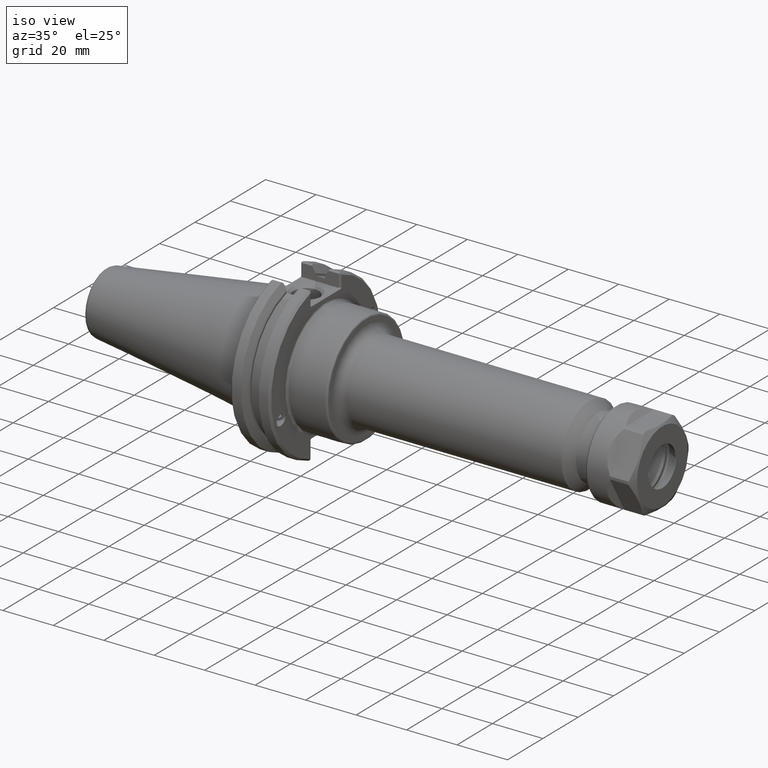
[diagram: clean part render]
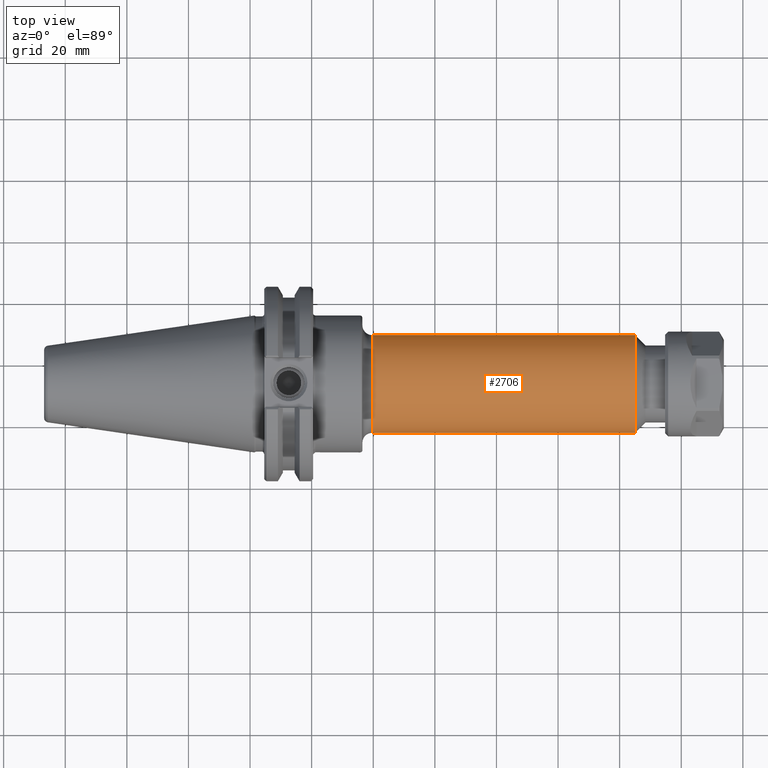
[diagram: tour spotlight — one face highlighted and labeled with its STEP entity id]
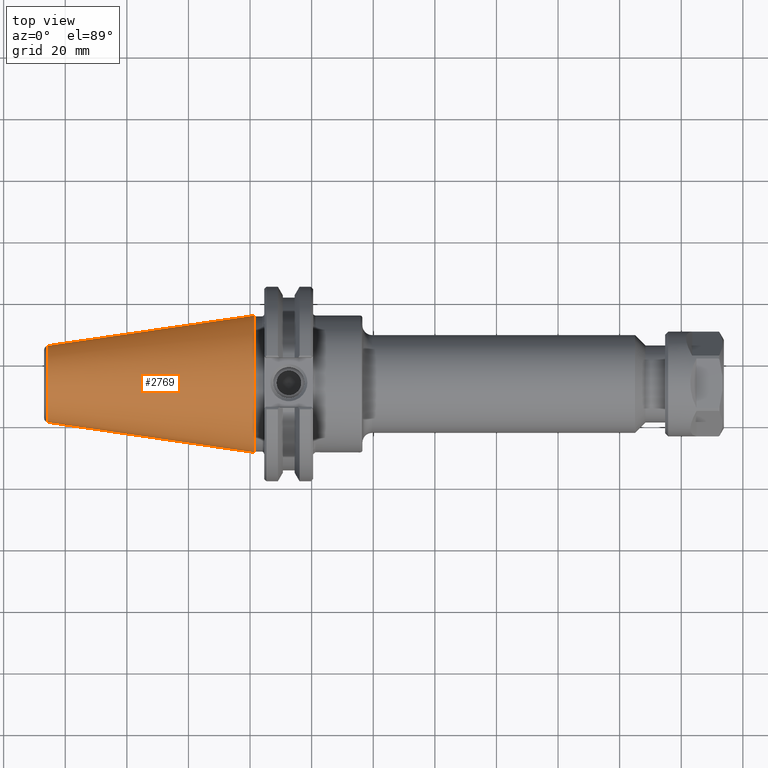
[diagram: tour spotlight — one face highlighted and labeled with its STEP entity id]
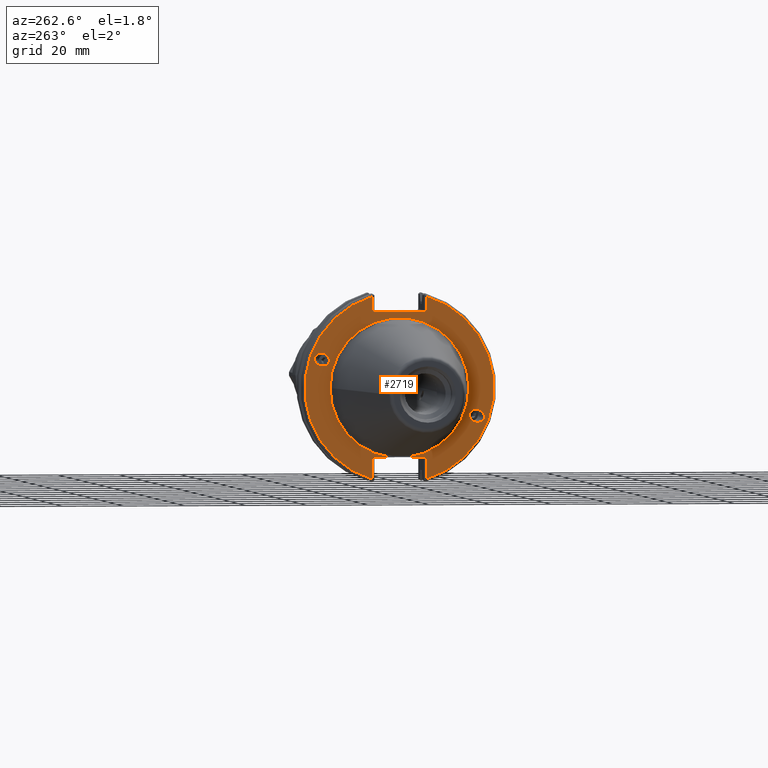
[diagram: tour spotlight — one face highlighted and labeled with its STEP entity id]
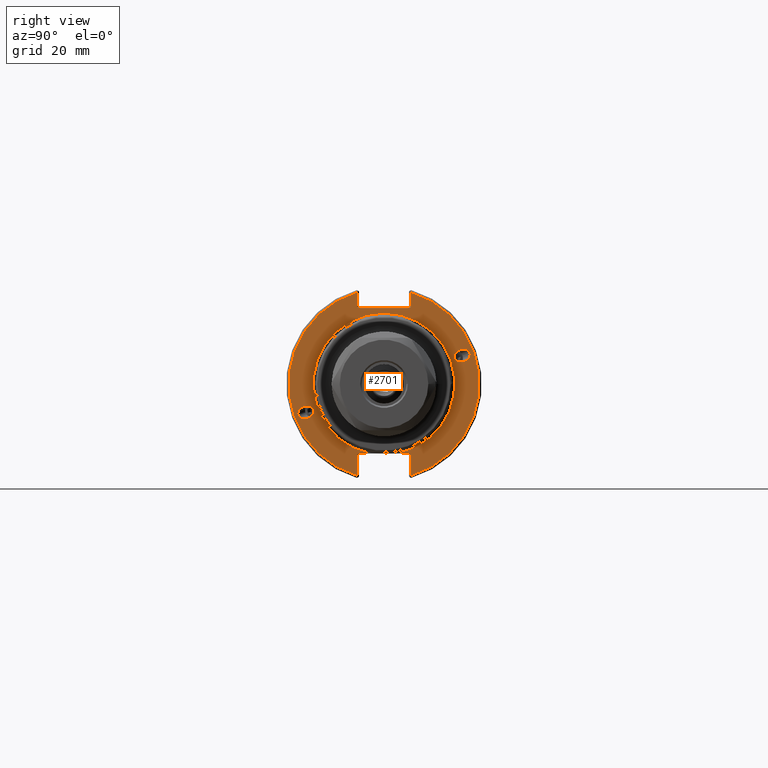
[diagram: tour spotlight — one face highlighted and labeled with its STEP entity id]
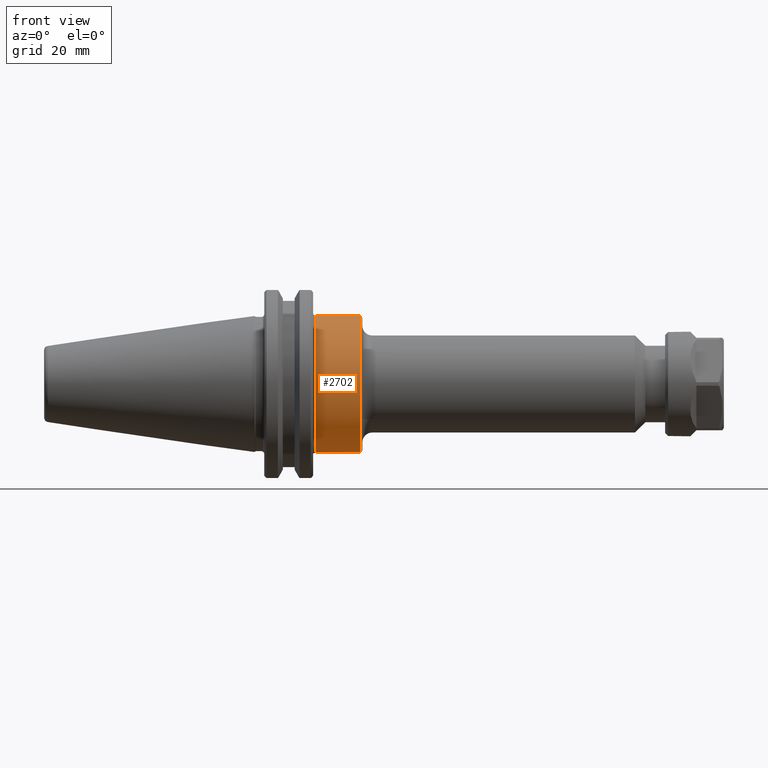
[diagram: tour spotlight — one face highlighted and labeled with its STEP entity id]
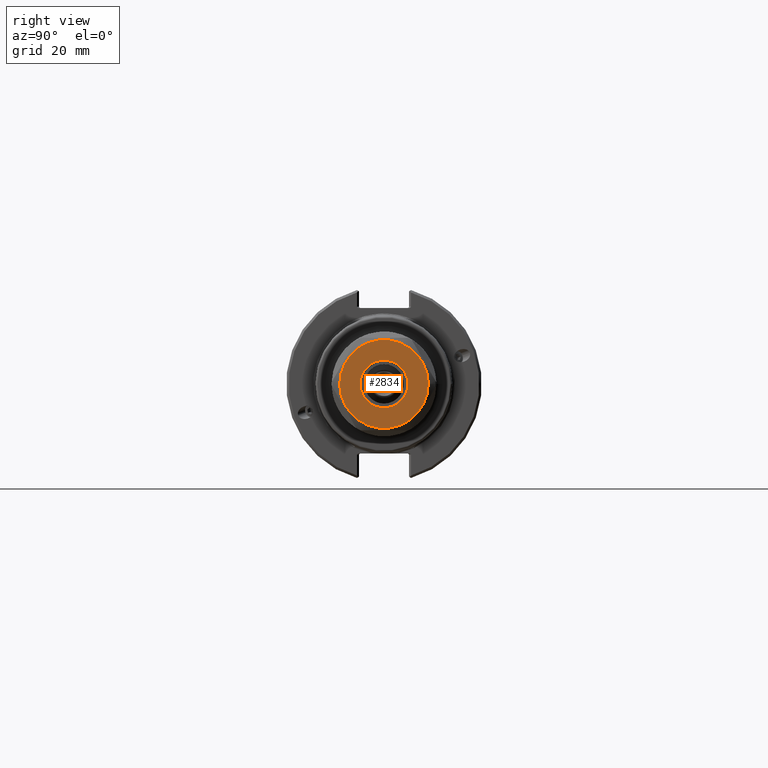
[diagram: tour spotlight — one face highlighted and labeled with its STEP entity id]
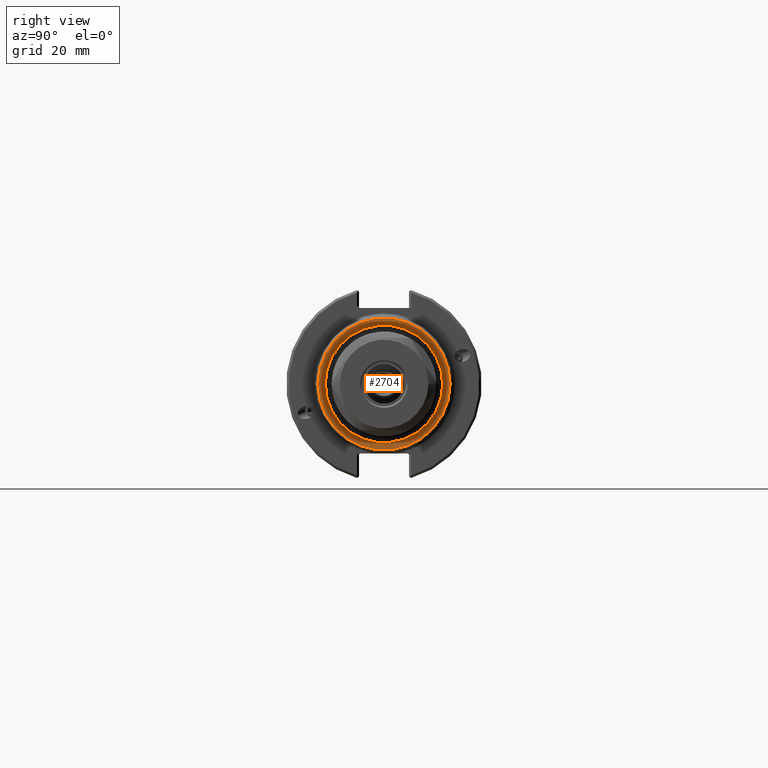
[diagram: tour spotlight — one face highlighted and labeled with its STEP entity id]
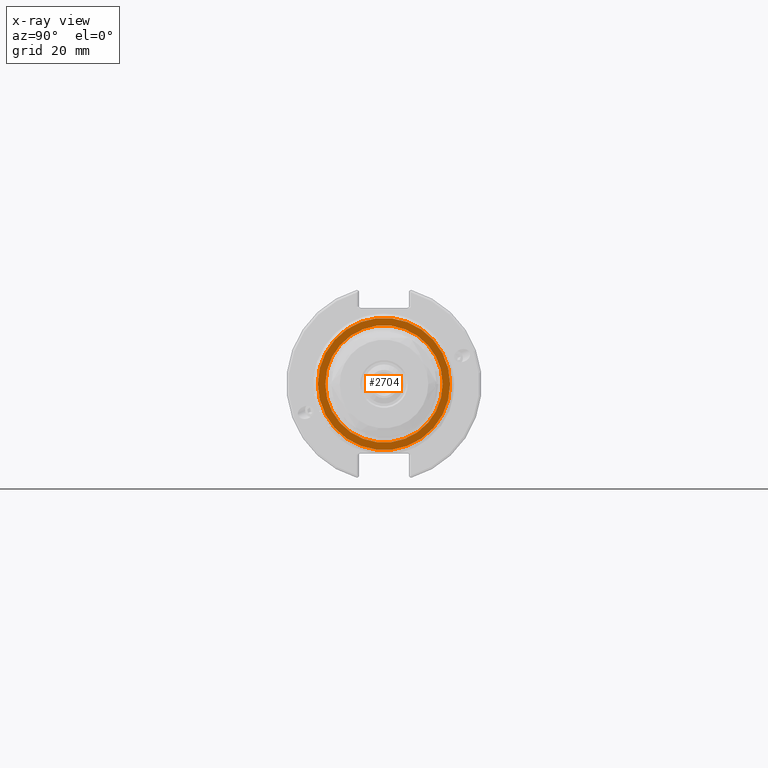
[diagram: x-ray of the same camera — body ghosted, this tour face saturated]
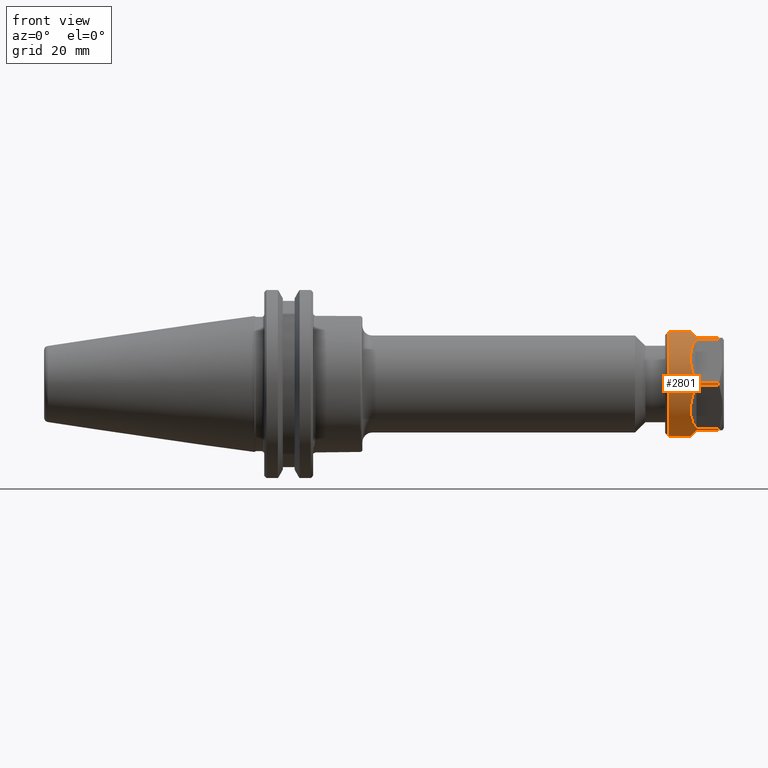
[diagram: tour spotlight — one face highlighted and labeled with its STEP entity id]
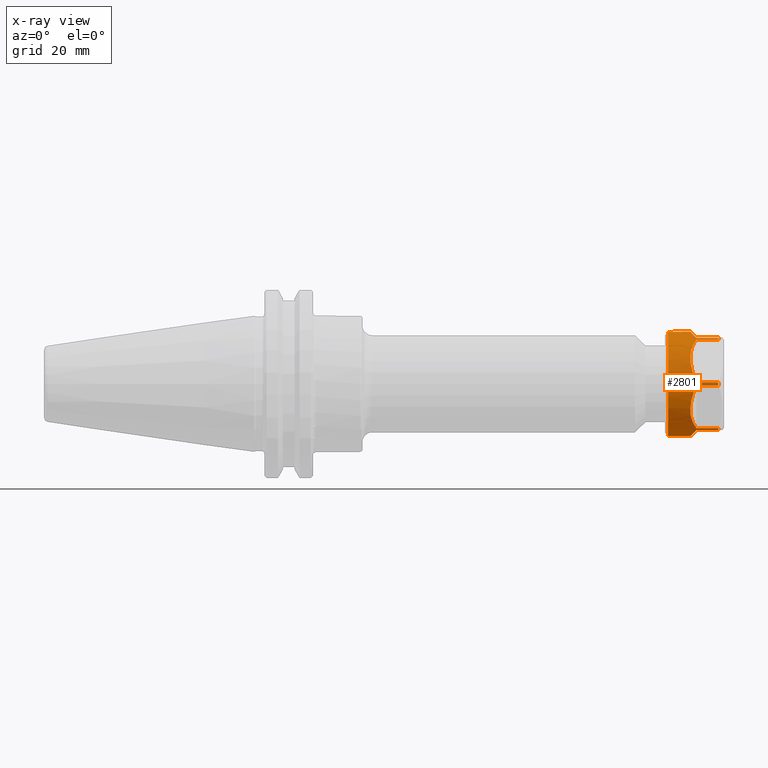
[diagram: x-ray of the same camera — body ghosted, this tour face saturated]
A machine part: a face-by-face anatomy tour. The part has 226 B-rep faces; the first image is the clean iso view, then the 8 largest visible faces are spotlighted one at a time (largest first), each with its STEP entity span.

Face 1 — top view, entity #2706. In plain terms, the highlighted cylindrical surface (bore or boss wall) has radius 15.875 mm, axis along (1, 0, 0).
Definition (entity closure, byte-faithful):
#633=CIRCLE('',#2924,0.625);
#634=CIRCLE('',#2926,0.625);
#750=FACE_BOUND('',#1070,.T.);
#867=FACE_OUTER_BOUND('',#1069,.T.);
#1069=EDGE_LOOP('',(#1997));
#1070=EDGE_LOOP('',(#1998));
#1348=VERTEX_POINT('',#4250);
#1349=VERTEX_POINT('',#4253);
#1611=EDGE_CURVE('',#1348,#1348,#633,.T.);
#1612=EDGE_CURVE('',#1349,#1349,#634,.T.);
#1997=ORIENTED_EDGE('',*,*,#1612,.F.);
#1998=ORIENTED_EDGE('',*,*,#1611,.F.);
#2640=CYLINDRICAL_SURFACE('',#2925,0.625);
#2706=ADVANCED_FACE('',(#867,#750),#2640,.T.);
#2924=AXIS2_PLACEMENT_3D('',#4251,#3330,#3331);
#2925=AXIS2_PLACEMENT_3D('',#4252,#3332,#3333);
#2926=AXIS2_PLACEMENT_3D('',#4254,#3334,#3335);
#3330=DIRECTION('center_axis',(-1.,0.,0.));
#3331=DIRECTION('ref_axis',(0.,-1.,-1.22464679914735E-16));
#3332=DIRECTION('center_axis',(1.,0.,0.));
#3333=DIRECTION('ref_axis',(0.,1.,0.));
#3334=DIRECTION('center_axis',(1.,0.,0.));
#3335=DIRECTION('ref_axis',(0.,1.,0.));
#4250=CARTESIAN_POINT('',(1.505,0.625,0.));
#4251=CARTESIAN_POINT('Origin',(1.505,0.,0.));
#4252=CARTESIAN_POINT('Origin',(3.12256299212598,0.,0.));
#4253=CARTESIAN_POINT('',(4.86512598425197,0.625,0.));
#4254=CARTESIAN_POINT('Origin',(4.86512598425197,0.,0.));

Face 2 — top view, entity #2769. In plain terms, the highlighted conical surface has half-angle 8.297 deg.
Definition (entity closure, byte-faithful):
#514=CONICAL_SURFACE('',#3032,0.67903993059773,8.297);
#650=CIRCLE('',#2961,0.875);
#665=CIRCLE('',#3030,0.48981834472846);
#776=FACE_BOUND('',#1159,.T.);
#930=FACE_OUTER_BOUND('',#1158,.T.);
#1158=EDGE_LOOP('',(#2277));
#1159=EDGE_LOOP('',(#2278));
#1380=VERTEX_POINT('',#4343);
#1455=VERTEX_POINT('',#4645);
#1646=EDGE_CURVE('',#1380,#1380,#650,.T.);
#1763=EDGE_CURVE('',#1455,#1455,#665,.T.);
#2277=ORIENTED_EDGE('',*,*,#1646,.F.);
#2278=ORIENTED_EDGE('',*,*,#1763,.F.);
#2769=ADVANCED_FACE('',(#930,#776),#514,.T.);
#2961=AXIS2_PLACEMENT_3D('',#4344,#3417,#3418);
#3030=AXIS2_PLACEMENT_3D('',#4646,#3617,#3618);
#3032=AXIS2_PLACEMENT_3D('',#4648,#3621,#3622);
#3417=DIRECTION('center_axis',(1.,0.,0.));
#3418=DIRECTION('ref_axis',(-1.62451355720802E-13,1.,0.));
#3617=DIRECTION('center_axis',(-1.,-3.56945127670622E-15,7.13890255341328E-16));
#3618=DIRECTION('ref_axis',(3.56945127670622E-15,-1.,2.83346419976399E-30));
#3621=DIRECTION('center_axis',(1.,0.,0.));
#3622=DIRECTION('ref_axis',(-1.62451355720802E-13,1.,0.));
#4343=CARTESIAN_POINT('',(0.,0.875,0.));
#4344=CARTESIAN_POINT('Origin',(0.,0.,0.));
#4645=CARTESIAN_POINT('',(-2.64129243702512,0.489818344728471,-1.19970893607074E-16));
#4646=CARTESIAN_POINT('Origin',(-2.64129243702511,1.13644876536433E-14,
-5.99854468035363E-17));
#4648=CARTESIAN_POINT('Origin',(-1.34375,0.,0.));

Face 3 — auxiliary view, entity #2719. In plain terms, the highlighted planar face has unit normal (-1, 0, 0).
Definition (entity closure, byte-faithful):
#108=LINE('',#4290,#254);
#114=LINE('',#4318,#260);
#115=LINE('',#4322,#261);
#116=LINE('',#4326,#262);
#117=LINE('',#4331,#263);
#118=LINE('',#4335,#264);
#119=LINE('',#4338,#265);
#254=VECTOR('',#3379,0.633431457505076);
#260=VECTOR('',#3393,0.204997332773838);
#261=VECTOR('',#3396,0.262202973846915);
#262=VECTOR('',#3399,0.178202973846928);
#263=VECTOR('',#3404,0.178202973846762);
#264=VECTOR('',#3407,0.262202973846774);
#265=VECTOR('',#3410,0.204997332774319);
#541=PLANE('',#2951);
#645=CIRCLE('',#2949,0.895);
#647=CIRCLE('',#2953,1.22);
#648=CIRCLE('',#2956,1.22);
#765=FACE_BOUND('',#1098,.T.);
#766=FACE_BOUND('',#1099,.T.);
#818=ELLIPSE('',#2891,0.0985270829512201,0.080708661417323);
#819=ELLIPSE('',#2899,0.0985270829512201,0.080708661417323);
#824=ELLIPSE('',#2952,0.0282842712474643,0.02);
#825=ELLIPSE('',#2954,0.0282842712474618,0.02);
#826=ELLIPSE('',#2955,0.0282842712474619,0.02);
#827=ELLIPSE('',#2957,0.0282842712474596,0.02);
#880=FACE_OUTER_BOUND('',#1097,.T.);
#1097=EDGE_LOOP('',(#2033,#2034,#2035,#2036,#2037,#2038,#2039,#2040,#2041,
#2042,#2043,#2044,#2045,#2046));
#1098=EDGE_LOOP('',(#2047));
#1099=EDGE_LOOP('',(#2048));
#1322=VERTEX_POINT('',#4173);
#1325=VERTEX_POINT('',#4184);
#1360=VERTEX_POINT('',#4286);
#1362=VERTEX_POINT('',#4289);
#1366=VERTEX_POINT('',#4300);
#1367=VERTEX_POINT('',#4301);
#1369=VERTEX_POINT('',#4317);
#1370=VERTEX_POINT('',#4319);
#1371=VERTEX_POINT('',#4321);
#1372=VERTEX_POINT('',#4323);
#1373=VERTEX_POINT('',#4325);
#1374=VERTEX_POINT('',#4328);
#1375=VERTEX_POINT('',#4330);
#1376=VERTEX_POINT('',#4332);
#1377=VERTEX_POINT('',#4334);
#1378=VERTEX_POINT('',#4336);
#1584=EDGE_CURVE('',#1322,#1322,#818,.T.);
#1587=EDGE_CURVE('',#1325,#1325,#819,.T.);
#1624=EDGE_CURVE('',#1360,#1362,#108,.T.);
#1631=EDGE_CURVE('',#1366,#1367,#645,.T.);
#1633=EDGE_CURVE('',#1369,#1366,#114,.T.);
#1634=EDGE_CURVE('',#1370,#1369,#824,.T.);
#1635=EDGE_CURVE('',#1371,#1370,#115,.T.);
#1636=EDGE_CURVE('',#1372,#1371,#647,.T.);
#1637=EDGE_CURVE('',#1373,#1372,#116,.T.);
#1638=EDGE_CURVE('',#1362,#1373,#825,.T.);
#1639=EDGE_CURVE('',#1374,#1360,#826,.T.);
#1640=EDGE_CURVE('',#1375,#1374,#117,.T.);
#1641=EDGE_CURVE('',#1376,#1375,#648,.T.);
#1642=EDGE_CURVE('',#1377,#1376,#118,.T.);
#1643=EDGE_CURVE('',#1378,#1377,#827,.T.);
#1644=EDGE_CURVE('',#1367,#1378,#119,.T.);
#2033=ORIENTED_EDGE('',*,*,#1631,.F.);
#2034=ORIENTED_EDGE('',*,*,#1633,.F.);
#2035=ORIENTED_EDGE('',*,*,#1634,.F.);
#2036=ORIENTED_EDGE('',*,*,#1635,.F.);
#2037=ORIENTED_EDGE('',*,*,#1636,.F.);
#2038=ORIENTED_EDGE('',*,*,#1637,.F.);
#2039=ORIENTED_EDGE('',*,*,#1638,.F.);
#2040=ORIENTED_EDGE('',*,*,#1624,.F.);
#2041=ORIENTED_EDGE('',*,*,#1639,.F.);
#2042=ORIENTED_EDGE('',*,*,#1640,.F.);
#2043=ORIENTED_EDGE('',*,*,#1641,.F.);
#2044=ORIENTED_EDGE('',*,*,#1642,.F.);
#2045=ORIENTED_EDGE('',*,*,#1643,.F.);
#2046=ORIENTED_EDGE('',*,*,#1644,.F.);
#2047=ORIENTED_EDGE('',*,*,#1584,.T.);
#2048=ORIENTED_EDGE('',*,*,#1587,.T.);
#2719=ADVANCED_FACE('',(#880,#765,#766),#541,.T.);
#2891=AXIS2_PLACEMENT_3D('',#4174,#3257,#3258);
#2899=AXIS2_PLACEMENT_3D('',#4185,#3273,#3274);
#2949=AXIS2_PLACEMENT_3D('',#4313,#3387,#3388);
#2951=AXIS2_PLACEMENT_3D('',#4316,#3391,#3392);
#2952=AXIS2_PLACEMENT_3D('',#4320,#3394,#3395);
#2953=AXIS2_PLACEMENT_3D('',#4324,#3397,#3398);
#2954=AXIS2_PLACEMENT_3D('',#4327,#3400,#3401);
#2955=AXIS2_PLACEMENT_3D('',#4329,#3402,#3403);
#2956=AXIS2_PLACEMENT_3D('',#4333,#3405,#3406);
#2957=AXIS2_PLACEMENT_3D('',#4337,#3408,#3409);
#3257=DIRECTION('center_axis',(1.,0.,0.));
#3258=DIRECTION('ref_axis',(5.54537475755124E-17,-0.939692620785909,-0.342020143325667));
#3273=DIRECTION('center_axis',(1.,0.,0.));
#3274=DIRECTION('ref_axis',(5.54537475755124E-17,0.939692620785909,0.342020143325667));
#3379=DIRECTION('',(0.,-1.,-3.67894043826846E-32));
#3387=DIRECTION('center_axis',(-1.,0.,0.));
#3388=DIRECTION('ref_axis',(0.,-1.,-1.22464679914735E-16));
#3391=DIRECTION('center_axis',(-1.,0.,0.));
#3392=DIRECTION('ref_axis',(0.,0.,1.));
#3393=DIRECTION('',(0.,1.,0.));
#3394=DIRECTION('center_axis',(-1.,0.,0.));
#3395=DIRECTION('ref_axis',(0.,-1.,9.65854120745351E-17));
#3396=DIRECTION('',(0.,0.,1.));
#3397=DIRECTION('center_axis',(1.,0.,0.));
#3398=DIRECTION('ref_axis',(0.,-1.,0.));
#3399=DIRECTION('',(0.,0.,1.));
#3400=DIRECTION('center_axis',(-1.,0.,0.));
#3401=DIRECTION('ref_axis',(-3.41480999208033E-17,-1.,9.65854120745434E-17));
#3402=DIRECTION('center_axis',(-1.,0.,0.));
#3403=DIRECTION('ref_axis',(0.,1.,1.93170824149087E-16));
#3404=DIRECTION('',(0.,0.,-1.));
#3405=DIRECTION('center_axis',(1.,0.,0.));
#3406=DIRECTION('ref_axis',(0.,1.,0.));
#3407=DIRECTION('',(0.,0.,-1.));
#3408=DIRECTION('center_axis',(-1.,0.,0.));
#3409=DIRECTION('ref_axis',(0.,1.,9.65854120745511E-17));
#3410=DIRECTION('',(0.,1.,0.));
#4173=CARTESIAN_POINT('',(0.125,-0.906308083098598,-0.32986916532275));
#4174=CARTESIAN_POINT('Origin',(0.125,-0.99889325589542,-0.363567412355186));
#4184=CARTESIAN_POINT('',(0.125,0.906308083098598,0.32986916532275));
#4185=CARTESIAN_POINT('Origin',(0.125,0.99889325589542,0.363567412355186));
#4286=CARTESIAN_POINT('',(0.125,0.316715728752819,0.972));
#4289=CARTESIAN_POINT('',(0.125,-0.316715728752257,0.972));
#4290=CARTESIAN_POINT('',(0.125,0.53125000000014,0.972));
#4300=CARTESIAN_POINT('',(0.125,-0.11171839597846,-0.888));
#4301=CARTESIAN_POINT('',(0.125,0.11171839597846,-0.888));
#4313=CARTESIAN_POINT('Origin',(0.125,0.,0.));
#4316=CARTESIAN_POINT('Origin',(0.125,1.0625,0.));
#4317=CARTESIAN_POINT('',(0.125,-0.316715728752297,-0.888));
#4318=CARTESIAN_POINT('',(0.125,0.531250000000153,-0.888));
#4319=CARTESIAN_POINT('',(0.125,-0.344999999999762,-0.908));
#4320=CARTESIAN_POINT('Origin',(0.125,-0.316715728752297,-0.908));
#4321=CARTESIAN_POINT('',(0.125,-0.344999999999762,-1.17020297384692));
#4322=CARTESIAN_POINT('',(0.125,-0.344999999999762,-0.444));
#4323=CARTESIAN_POINT('',(0.125,-0.344999999999719,1.17020297384693));
#4324=CARTESIAN_POINT('Origin',(0.125,0.,0.));
#4325=CARTESIAN_POINT('',(0.125,-0.344999999999719,0.992));
#4326=CARTESIAN_POINT('',(0.125,-0.344999999999719,0.486));
#4327=CARTESIAN_POINT('Origin',(0.125,-0.316715728752257,0.992));
#4328=CARTESIAN_POINT('',(0.125,0.345000000000281,0.992));
#4329=CARTESIAN_POINT('Origin',(0.125,0.316715728752819,0.992));
#4330=CARTESIAN_POINT('',(0.125,0.345000000000281,1.17020297384676));
#4331=CARTESIAN_POINT('',(0.125,0.345000000000281,0.486));
#4332=CARTESIAN_POINT('',(0.125,0.345000000000239,-1.17020297384677));
#4333=CARTESIAN_POINT('Origin',(0.125,0.,0.));
#4334=CARTESIAN_POINT('',(0.125,0.345000000000239,-0.908));
#4335=CARTESIAN_POINT('',(0.125,0.345000000000239,-0.444));
#4336=CARTESIAN_POINT('',(0.125,0.316715728752779,-0.888));
#4337=CARTESIAN_POINT('Origin',(0.125,0.316715728752779,-0.908));
#4338=CARTESIAN_POINT('',(0.125,0.531250000000153,-0.888));

Face 4 — right view, entity #2701. In plain terms, the highlighted planar face has unit normal (1, 0, 0).
Definition (entity closure, byte-faithful):
#100=LINE('',#4216,#246);
#101=LINE('',#4220,#247);
#102=LINE('',#4224,#248);
#103=LINE('',#4228,#249);
#104=LINE('',#4232,#250);
#105=LINE('',#4236,#251);
#106=LINE('',#4239,#252);
#246=VECTOR('',#3297,0.142127642103186);
#247=VECTOR('',#3300,0.262202973846744);
#248=VECTOR('',#3303,0.178202973846762);
#249=VECTOR('',#3306,0.633431457505076);
#250=VECTOR('',#3309,0.178202973846928);
#251=VECTOR('',#3312,0.262202973846945);
#252=VECTOR('',#3315,0.14212764210251);
#537=PLANE('',#2910);
#626=CIRCLE('',#2908,0.905);
#628=CIRCLE('',#2912,1.22);
#629=CIRCLE('',#2915,1.22);
#744=FACE_BOUND('',#1059,.T.);
#745=FACE_BOUND('',#1060,.T.);
#814=ELLIPSE('',#2871,0.105357674926424,0.080708661417323);
#817=ELLIPSE('',#2882,0.105357674926424,0.0807086614173229);
#820=ELLIPSE('',#2911,0.0282842712474643,0.02);
#821=ELLIPSE('',#2913,0.028284271247462,0.02);
#822=ELLIPSE('',#2914,0.028284271247462,0.02);
#823=ELLIPSE('',#2916,0.0282842712474597,0.02);
#862=FACE_OUTER_BOUND('',#1058,.T.);
#1058=EDGE_LOOP('',(#1973,#1974,#1975,#1976,#1977,#1978,#1979,#1980,#1981,
#1982,#1983,#1984,#1985,#1986));
#1059=EDGE_LOOP('',(#1987));
#1060=EDGE_LOOP('',(#1988));
#1311=VERTEX_POINT('',#4092);
#1319=VERTEX_POINT('',#4161);
#1330=VERTEX_POINT('',#4198);
#1331=VERTEX_POINT('',#4199);
#1333=VERTEX_POINT('',#4215);
#1334=VERTEX_POINT('',#4217);
#1335=VERTEX_POINT('',#4219);
#1336=VERTEX_POINT('',#4221);
#1337=VERTEX_POINT('',#4223);
#1338=VERTEX_POINT('',#4225);
#1339=VERTEX_POINT('',#4227);
#1340=VERTEX_POINT('',#4229);
#1341=VERTEX_POINT('',#4231);
#1342=VERTEX_POINT('',#4233);
#1343=VERTEX_POINT('',#4235);
#1344=VERTEX_POINT('',#4237);
#1569=EDGE_CURVE('',#1311,#1311,#814,.T.);
#1579=EDGE_CURVE('',#1319,#1319,#817,.T.);
#1593=EDGE_CURVE('',#1330,#1331,#626,.T.);
#1595=EDGE_CURVE('',#1333,#1330,#100,.T.);
#1596=EDGE_CURVE('',#1334,#1333,#820,.T.);
#1597=EDGE_CURVE('',#1335,#1334,#101,.T.);
#1598=EDGE_CURVE('',#1336,#1335,#628,.T.);
#1599=EDGE_CURVE('',#1337,#1336,#102,.T.);
#1600=EDGE_CURVE('',#1338,#1337,#821,.T.);
#1601=EDGE_CURVE('',#1339,#1338,#103,.T.);
#1602=EDGE_CURVE('',#1340,#1339,#822,.T.);
#1603=EDGE_CURVE('',#1341,#1340,#104,.T.);
#1604=EDGE_CURVE('',#1342,#1341,#629,.T.);
#1605=EDGE_CURVE('',#1343,#1342,#105,.T.);
#1606=EDGE_CURVE('',#1344,#1343,#823,.T.);
#1607=EDGE_CURVE('',#1331,#1344,#106,.T.);
#1973=ORIENTED_EDGE('',*,*,#1593,.F.);
#1974=ORIENTED_EDGE('',*,*,#1595,.F.);
#1975=ORIENTED_EDGE('',*,*,#1596,.F.);
#1976=ORIENTED_EDGE('',*,*,#1597,.F.);
#1977=ORIENTED_EDGE('',*,*,#1598,.F.);
#1978=ORIENTED_EDGE('',*,*,#1599,.F.);
#1979=ORIENTED_EDGE('',*,*,#1600,.F.);
#1980=ORIENTED_EDGE('',*,*,#1601,.F.);
#1981=ORIENTED_EDGE('',*,*,#1602,.F.);
#1982=ORIENTED_EDGE('',*,*,#1603,.F.);
#1983=ORIENTED_EDGE('',*,*,#1604,.F.);
#1984=ORIENTED_EDGE('',*,*,#1605,.F.);
#1985=ORIENTED_EDGE('',*,*,#1606,.F.);
#1986=ORIENTED_EDGE('',*,*,#1607,.F.);
#1987=ORIENTED_EDGE('',*,*,#1569,.T.);
#1988=ORIENTED_EDGE('',*,*,#1579,.T.);
#2701=ADVANCED_FACE('',(#862,#744,#745),#537,.T.);
#2871=AXIS2_PLACEMENT_3D('',#4093,#3217,#3218);
#2882=AXIS2_PLACEMENT_3D('',#4162,#3239,#3240);
#2908=AXIS2_PLACEMENT_3D('',#4211,#3291,#3292);
#2910=AXIS2_PLACEMENT_3D('',#4214,#3295,#3296);
#2911=AXIS2_PLACEMENT_3D('',#4218,#3298,#3299);
#2912=AXIS2_PLACEMENT_3D('',#4222,#3301,#3302);
#2913=AXIS2_PLACEMENT_3D('',#4226,#3304,#3305);
#2914=AXIS2_PLACEMENT_3D('',#4230,#3307,#3308);
#2915=AXIS2_PLACEMENT_3D('',#4234,#3310,#3311);
#2916=AXIS2_PLACEMENT_3D('',#4238,#3313,#3314);
#3217=DIRECTION('center_axis',(-1.,0.,0.));
#3218=DIRECTION('ref_axis',(0.,-0.939692620785906,-0.342020143325676));
#3239=DIRECTION('center_axis',(-1.,0.,0.));
#3240=DIRECTION('ref_axis',(0.,0.939692620785909,0.342020143325668));
#3291=DIRECTION('center_axis',(1.,0.,0.));
#3292=DIRECTION('ref_axis',(0.,-1.,1.22464679914735E-16));
#3295=DIRECTION('center_axis',(1.,0.,0.));
#3296=DIRECTION('ref_axis',(0.,0.,-1.));
#3297=DIRECTION('',(0.,-1.,0.));
#3298=DIRECTION('center_axis',(1.,0.,0.));
#3299=DIRECTION('ref_axis',(3.41480999208005E-17,1.,-2.41463530186338E-16));
#3300=DIRECTION('',(0.,0.,1.));
#3301=DIRECTION('center_axis',(-1.,0.,0.));
#3302=DIRECTION('ref_axis',(0.,1.,0.));
#3303=DIRECTION('',(0.,0.,1.));
#3304=DIRECTION('center_axis',(1.,0.,0.));
#3305=DIRECTION('ref_axis',(0.,1.,-9.65854120745431E-17));
#3306=DIRECTION('',(0.,1.,3.67894043826846E-32));
#3307=DIRECTION('center_axis',(1.,0.,0.));
#3308=DIRECTION('ref_axis',(3.41480999208031E-17,-1.,0.));
#3309=DIRECTION('',(0.,0.,-1.));
#3310=DIRECTION('center_axis',(-1.,0.,0.));
#3311=DIRECTION('ref_axis',(0.,-1.,0.));
#3312=DIRECTION('',(0.,0.,-1.));
#3313=DIRECTION('center_axis',(1.,0.,0.));
#3314=DIRECTION('ref_axis',(0.,-1.,1.93170824149102E-16));
#3315=DIRECTION('',(0.,-1.,0.));
#4092=CARTESIAN_POINT('',(0.75,-0.899889426223899,-0.32753296527639));
#4093=CARTESIAN_POINT('Origin',(0.75,-0.99889325589542,-0.363567412355186));
#4161=CARTESIAN_POINT('',(0.75,0.899889426223899,0.327532965276391));
#4162=CARTESIAN_POINT('Origin',(0.75,0.99889325589542,0.363567412355186));
#4198=CARTESIAN_POINT('',(0.75,0.17458808664969,-0.888));
#4199=CARTESIAN_POINT('',(0.75,-0.17458808664969,-0.888));
#4211=CARTESIAN_POINT('Origin',(0.75,0.,0.));
#4214=CARTESIAN_POINT('Origin',(0.75,1.0625,0.));
#4215=CARTESIAN_POINT('',(0.75,0.316715728752876,-0.888));
#4216=CARTESIAN_POINT('',(0.75,0.531250000000153,-0.888));
#4217=CARTESIAN_POINT('',(0.75,0.34500000000034,-0.908));
#4218=CARTESIAN_POINT('Origin',(0.75,0.316715728752876,-0.908));
#4219=CARTESIAN_POINT('',(0.75,0.34500000000034,-1.17020297384674));
#4220=CARTESIAN_POINT('',(0.75,0.34500000000034,-0.444));
#4221=CARTESIAN_POINT('',(0.75,0.345000000000281,1.17020297384676));
#4222=CARTESIAN_POINT('Origin',(0.75,0.,0.));
#4223=CARTESIAN_POINT('',(0.75,0.345000000000281,0.992));
#4224=CARTESIAN_POINT('',(0.75,0.345000000000281,0.486));
#4225=CARTESIAN_POINT('',(0.75,0.316715728752819,0.972));
#4226=CARTESIAN_POINT('Origin',(0.75,0.316715728752819,0.992));
#4227=CARTESIAN_POINT('',(0.75,-0.316715728752257,0.972));
#4228=CARTESIAN_POINT('',(0.75,0.53125000000014,0.972));
#4229=CARTESIAN_POINT('',(0.75,-0.344999999999719,0.992));
#4230=CARTESIAN_POINT('Origin',(0.75,-0.316715728752257,0.992));
#4231=CARTESIAN_POINT('',(0.75,-0.344999999999719,1.17020297384693));
#4232=CARTESIAN_POINT('',(0.75,-0.344999999999719,0.486));
#4233=CARTESIAN_POINT('',(0.75,-0.34499999999966,-1.17020297384695));
#4234=CARTESIAN_POINT('Origin',(0.75,0.,0.));
#4235=CARTESIAN_POINT('',(0.75,-0.34499999999966,-0.908));
#4236=CARTESIAN_POINT('',(0.75,-0.34499999999966,-0.444));
#4237=CARTESIAN_POINT('',(0.75,-0.3167157287522,-0.888));
#4238=CARTESIAN_POINT('Origin',(0.75,-0.3167157287522,-0.908));
#4239=CARTESIAN_POINT('',(0.75,0.531250000000153,-0.888));

Face 5 — front view, entity #2702. In plain terms, the highlighted cylindrical surface (bore or boss wall) has radius 22.225 mm, axis along (1, 0, 0).
Definition (entity closure, byte-faithful):
#627=CIRCLE('',#2909,0.875);
#630=CIRCLE('',#2918,0.875);
#746=FACE_BOUND('',#1062,.T.);
#863=FACE_OUTER_BOUND('',#1061,.T.);
#1061=EDGE_LOOP('',(#1989));
#1062=EDGE_LOOP('',(#1990));
#1332=VERTEX_POINT('',#4212);
#1345=VERTEX_POINT('',#4241);
#1594=EDGE_CURVE('',#1332,#1332,#627,.T.);
#1608=EDGE_CURVE('',#1345,#1345,#630,.T.);
#1989=ORIENTED_EDGE('',*,*,#1608,.F.);
#1990=ORIENTED_EDGE('',*,*,#1594,.F.);
#2639=CYLINDRICAL_SURFACE('',#2917,0.875);
#2702=ADVANCED_FACE('',(#863,#746),#2639,.T.);
#2909=AXIS2_PLACEMENT_3D('',#4213,#3293,#3294);
#2917=AXIS2_PLACEMENT_3D('',#4240,#3316,#3317);
#2918=AXIS2_PLACEMENT_3D('',#4242,#3318,#3319);
#3293=DIRECTION('center_axis',(-1.,0.,0.));
#3294=DIRECTION('ref_axis',(0.,-1.,1.22464679914735E-16));
#3316=DIRECTION('center_axis',(1.,0.,0.));
#3317=DIRECTION('ref_axis',(-1.62451355720802E-13,1.,0.));
#3318=DIRECTION('center_axis',(1.,0.,0.));
#3319=DIRECTION('ref_axis',(0.,-1.,1.22464679914735E-16));
#4212=CARTESIAN_POINT('',(0.78,0.875,-2.14313189850787E-16));
#4213=CARTESIAN_POINT('Origin',(0.78,0.,0.));
#4240=CARTESIAN_POINT('Origin',(1.065,0.,0.));
#4241=CARTESIAN_POINT('',(1.35,0.875,0.));
#4242=CARTESIAN_POINT('Origin',(1.35,0.,0.));

Face 6 — right view, entity #2834. In plain terms, the highlighted planar face has unit normal (1, 0, -0).
Definition (entity closure, byte-faithful):
#595=PLANE('',#3160);
#706=CIRCLE('',#3141,14.382308546376);
#714=CIRCLE('',#3159,7.747);
#799=FACE_BOUND('',#1247,.T.);
#995=FACE_OUTER_BOUND('',#1246,.T.);
#1246=EDGE_LOOP('',(#2546));
#1247=EDGE_LOOP('',(#2547));
#1524=VERTEX_POINT('',#5003);
#1532=VERTEX_POINT('',#5029);
#1868=EDGE_CURVE('',#1524,#1524,#706,.T.);
#1876=EDGE_CURVE('',#1532,#1532,#714,.T.);
#2546=ORIENTED_EDGE('',*,*,#1868,.F.);
#2547=ORIENTED_EDGE('',*,*,#1876,.T.);
#2834=ADVANCED_FACE('',(#995,#799),#595,.T.);
#3141=AXIS2_PLACEMENT_3D('',#5004,#3879,#3880);
#3159=AXIS2_PLACEMENT_3D('',#5030,#3915,#3916);
#3160=AXIS2_PLACEMENT_3D('',#5031,#3917,#3918);
#3879=DIRECTION('center_axis',(1.,0.,0.));
#3880=DIRECTION('ref_axis',(2.41367151994932E-17,1.,0.));
#3915=DIRECTION('center_axis',(1.,0.,0.));
#3916=DIRECTION('ref_axis',(2.41367151994931E-17,1.,0.));
#3917=DIRECTION('center_axis',(-1.,0.,0.));
#3918=DIRECTION('ref_axis',(0.,0.,1.));
#5003=CARTESIAN_POINT('',(-0.195789636357247,14.382308546376,0.));
#5004=CARTESIAN_POINT('Origin',(-0.195789636357247,0.,0.));
#5029=CARTESIAN_POINT('',(-0.195789636357245,7.747,0.));
#5030=CARTESIAN_POINT('Origin',(-0.195789636357245,0.,0.));
#5031=CARTESIAN_POINT('Origin',(-0.195789636357246,11.064654273188,0.));

Face 7 — right view, entity #2704. An x-ray twin of the same camera follows (body ghosted, this face saturated) — the face is partly hidden behind the body. In plain terms, the highlighted planar face has unit normal (1, 0, 0).
Definition (entity closure, byte-faithful):
#538=PLANE('',#2921);
#631=CIRCLE('',#2920,0.845);
#632=CIRCLE('',#2922,0.75);
#748=FACE_BOUND('',#1066,.T.);
#865=FACE_OUTER_BOUND('',#1065,.T.);
#1065=EDGE_LOOP('',(#1993));
#1066=EDGE_LOOP('',(#1994));
#1346=VERTEX_POINT('',#4244);
#1347=VERTEX_POINT('',#4247);
#1609=EDGE_CURVE('',#1346,#1346,#631,.T.);
#1610=EDGE_CURVE('',#1347,#1347,#632,.T.);
#1993=ORIENTED_EDGE('',*,*,#1609,.F.);
#1994=ORIENTED_EDGE('',*,*,#1610,.F.);
#2704=ADVANCED_FACE('',(#865,#748),#538,.T.);
#2920=AXIS2_PLACEMENT_3D('',#4245,#3322,#3323);
#2921=AXIS2_PLACEMENT_3D('',#4246,#3324,#3325);
#2922=AXIS2_PLACEMENT_3D('',#4248,#3326,#3327);
#3322=DIRECTION('center_axis',(-1.,0.,0.));
#3323=DIRECTION('ref_axis',(0.,-1.,1.22464679914735E-16));
#3324=DIRECTION('center_axis',(1.,0.,0.));
#3325=DIRECTION('ref_axis',(0.,0.,-1.));
#3326=DIRECTION('center_axis',(1.,0.,0.));
#3327=DIRECTION('ref_axis',(0.,-1.,-1.22464679914735E-16));
#4244=CARTESIAN_POINT('',(1.38,0.845,-2.06965309055903E-16));
#4245=CARTESIAN_POINT('Origin',(1.38,0.,0.));
#4246=CARTESIAN_POINT('Origin',(1.38,0.4375,0.));
#4247=CARTESIAN_POINT('',(1.38,0.75,1.83697019872103E-16));
#4248=CARTESIAN_POINT('Origin',(1.38,0.,0.));

Face 8 — front view, entity #2801. An x-ray twin of the same camera follows (body ghosted, this face saturated) — the face is partly hidden behind the body. In plain terms, the highlighted cylindrical surface (bore or boss wall) has radius 17 mm, axis along (-1, -0, 0).
Definition (entity closure, byte-faithful):
#201=LINE('',#4754,#347);
#202=LINE('',#4756,#348);
#203=LINE('',#4760,#349);
#204=LINE('',#4764,#350);
#205=LINE('',#4768,#351);
#206=LINE('',#4772,#352);
#207=LINE('',#4776,#353);
#208=LINE('',#4780,#354);
#209=LINE('',#4784,#355);
#210=LINE('',#4788,#356);
#211=LINE('',#4792,#357);
#212=LINE('',#4796,#358);
#347=VECTOR('',#3762,8.46578963635724);
#348=VECTOR('',#3763,8.46578963635724);
#349=VECTOR('',#3766,8.46578963635724);
#350=VECTOR('',#3769,8.46578963635724);
#351=VECTOR('',#3772,7.06578963635725);
#352=VECTOR('',#3775,7.06578963635725);
#353=VECTOR('',#3778,7.06578963635725);
#354=VECTOR('',#3781,7.06578963635725);
#355=VECTOR('',#3784,7.06578963635725);
#356=VECTOR('',#3787,7.06578963635725);
#357=VECTOR('',#3790,7.06578963635725);
#358=VECTOR('',#3793,7.06578963635725);
#684=CIRCLE('',#3092,17.);
#685=CIRCLE('',#3093,17.);
#686=CIRCLE('',#3095,17.);
#687=CIRCLE('',#3097,17.);
#688=CIRCLE('',#3099,17.);
#689=CIRCLE('',#3101,17.);
#690=CIRCLE('',#3103,17.);
#787=FACE_BOUND('',#1202,.T.);
#836=ELLIPSE('',#3090,24.0416305603426,17.);
#837=ELLIPSE('',#3094,24.0416305603426,17.);
#838=ELLIPSE('',#3096,24.0416305603426,17.);
#839=ELLIPSE('',#3098,24.0416305603426,17.);
#840=ELLIPSE('',#3100,24.0416305603426,17.);
#841=ELLIPSE('',#3102,24.0416305603426,17.);
#962=FACE_OUTER_BOUND('',#1201,.T.);
#1201=EDGE_LOOP('',(#2396));
#1202=EDGE_LOOP('',(#2397,#2398,#2399,#2400,#2401,#2402,#2403,#2404,#2405,
#2406,#2407,#2408,#2409,#2410,#2411,#2412,#2413,#2414,#2415,#2416,#2417,
#2418,#2419,#2420));
#1478=VERTEX_POINT('',#4746);
#1479=VERTEX_POINT('',#4747);
#1480=VERTEX_POINT('',#4751);
#1481=VERTEX_POINT('',#4753);
#1482=VERTEX_POINT('',#4755);
#1483=VERTEX_POINT('',#4757);
#1484=VERTEX_POINT('',#4759);
#1485=VERTEX_POINT('',#4761);
#1486=VERTEX_POINT('',#4763);
#1487=VERTEX_POINT('',#4765);
#1488=VERTEX_POINT('',#4767);
#1489=VERTEX_POINT('',#4769);
#1490=VERTEX_POINT('',#4771);
#1491=VERTEX_POINT('',#4773);
#1492=VERTEX_POINT('',#4775);
#1493=VERTEX_POINT('',#4777);
#1494=VERTEX_POINT('',#4779);
#1495=VERTEX_POINT('',#4781);
#1496=VERTEX_POINT('',#4783);
#1497=VERTEX_POINT('',#4785);
#1498=VERTEX_POINT('',#4787);
#1499=VERTEX_POINT('',#4789);
#1500=VERTEX_POINT('',#4791);
#1501=VERTEX_POINT('',#4793);
#1502=VERTEX_POINT('',#4795);
#1800=EDGE_CURVE('',#1478,#1479,#836,.T.);
#1802=EDGE_CURVE('',#1480,#1480,#684,.T.);
#1803=EDGE_CURVE('',#1481,#1478,#201,.T.);
#1804=EDGE_CURVE('',#1479,#1482,#202,.T.);
#1805=EDGE_CURVE('',#1482,#1483,#685,.T.);
#1806=EDGE_CURVE('',#1483,#1484,#203,.T.);
#1807=EDGE_CURVE('',#1484,#1485,#837,.T.);
#1808=EDGE_CURVE('',#1485,#1486,#204,.T.);
#1809=EDGE_CURVE('',#1486,#1487,#686,.T.);
#1810=EDGE_CURVE('',#1487,#1488,#205,.T.);
#1811=EDGE_CURVE('',#1488,#1489,#838,.T.);
#1812=EDGE_CURVE('',#1489,#1490,#206,.T.);
#1813=EDGE_CURVE('',#1490,#1491,#687,.T.);
#1814=EDGE_CURVE('',#1491,#1492,#207,.T.);
#1815=EDGE_CURVE('',#1492,#1493,#839,.T.);
#1816=EDGE_CURVE('',#1493,#1494,#208,.T.);
#1817=EDGE_CURVE('',#1494,#1495,#688,.T.);
#1818=EDGE_CURVE('',#1495,#1496,#209,.T.);
#1819=EDGE_CURVE('',#1496,#1497,#840,.T.);
#1820=EDGE_CURVE('',#1497,#1498,#210,.T.);
#1821=EDGE_CURVE('',#1498,#1499,#689,.T.);
#1822=EDGE_CURVE('',#1499,#1500,#211,.T.);
#1823=EDGE_CURVE('',#1500,#1501,#841,.T.);
#1824=EDGE_CURVE('',#1501,#1502,#212,.T.);
#1825=EDGE_CURVE('',#1502,#1481,#690,.T.);
#2396=ORIENTED_EDGE('',*,*,#1802,.F.);
#2397=ORIENTED_EDGE('',*,*,#1803,.T.);
#2398=ORIENTED_EDGE('',*,*,#1800,.T.);
#2399=ORIENTED_EDGE('',*,*,#1804,.T.);
#2400=ORIENTED_EDGE('',*,*,#1805,.T.);
#2401=ORIENTED_EDGE('',*,*,#1806,.T.);
#2402=ORIENTED_EDGE('',*,*,#1807,.T.);
#2403=ORIENTED_EDGE('',*,*,#1808,.T.);
#2404=ORIENTED_EDGE('',*,*,#1809,.T.);
#2405=ORIENTED_EDGE('',*,*,#1810,.T.);
#2406=ORIENTED_EDGE('',*,*,#1811,.T.);
#2407=ORIENTED_EDGE('',*,*,#1812,.T.);
#2408=ORIENTED_EDGE('',*,*,#1813,.T.);
#2409=ORIENTED_EDGE('',*,*,#1814,.T.);
#2410=ORIENTED_EDGE('',*,*,#1815,.T.);
#2411=ORIENTED_EDGE('',*,*,#1816,.T.);
#2412=ORIENTED_EDGE('',*,*,#1817,.T.);
#2413=ORIENTED_EDGE('',*,*,#1818,.T.);
#2414=ORIENTED_EDGE('',*,*,#1819,.T.);
#2415=ORIENTED_EDGE('',*,*,#1820,.T.);
#2416=ORIENTED_EDGE('',*,*,#1821,.T.);
#2417=ORIENTED_EDGE('',*,*,#1822,.T.);
#2418=ORIENTED_EDGE('',*,*,#1823,.T.);
#2419=ORIENTED_EDGE('',*,*,#1824,.T.);
#2420=ORIENTED_EDGE('',*,*,#1825,.T.);
#2670=CYLINDRICAL_SURFACE('',#3091,17.);
#2801=ADVANCED_FACE('',(#962,#787),#2670,.T.);
#3090=AXIS2_PLACEMENT_3D('',#4748,#3755,#3756);
#3091=AXIS2_PLACEMENT_3D('',#4750,#3758,#3759);
#3092=AXIS2_PLACEMENT_3D('',#4752,#3760,#3761);
#3093=AXIS2_PLACEMENT_3D('',#4758,#3764,#3765);
#3094=AXIS2_PLACEMENT_3D('',#4762,#3767,#3768);
#3095=AXIS2_PLACEMENT_3D('',#4766,#3770,#3771);
#3096=AXIS2_PLACEMENT_3D('',#4770,#3773,#3774);
#3097=AXIS2_PLACEMENT_3D('',#4774,#3776,#3777);
#3098=AXIS2_PLACEMENT_3D('',#4778,#3779,#3780);
#3099=AXIS2_PLACEMENT_3D('',#4782,#3782,#3783);
#3100=AXIS2_PLACEMENT_3D('',#4786,#3785,#3786);
#3101=AXIS2_PLACEMENT_3D('',#4790,#3788,#3789);
#3102=AXIS2_PLACEMENT_3D('',#4794,#3791,#3792);
#3103=AXIS2_PLACEMENT_3D('',#4797,#3794,#3795);
#3755=DIRECTION('center_axis',(0.707106781186547,-0.612372435695795,0.353553390593274));
#3756=DIRECTION('ref_axis',(0.707106781186548,0.612372435695794,-0.353553390593273));
#3758=DIRECTION('center_axis',(1.,0.,0.));
#3759=DIRECTION('ref_axis',(2.41367151994932E-17,1.,0.));
#3760=DIRECTION('center_axis',(1.,0.,0.));
#3761=DIRECTION('ref_axis',(2.41367151994932E-17,1.,0.));
#3762=DIRECTION('',(1.,0.,0.));
#3763=DIRECTION('',(-1.,0.,0.));
#3764=DIRECTION('center_axis',(1.,0.,0.));
#3765=DIRECTION('ref_axis',(2.41367151994932E-17,1.,0.));
#3766=DIRECTION('',(1.,0.,0.));
#3767=DIRECTION('center_axis',(0.707106781186547,-0.612372435695795,-0.353553390593274));
#3768=DIRECTION('ref_axis',(0.707106781186548,0.612372435695794,0.353553390593273));
#3769=DIRECTION('',(-1.,0.,0.));
#3770=DIRECTION('center_axis',(1.,0.,0.));
#3771=DIRECTION('ref_axis',(2.41367151994932E-17,1.,0.));
#3772=DIRECTION('',(1.,0.,0.));
#3773=DIRECTION('center_axis',(0.707106781186547,0.,-0.707106781186548));
#3774=DIRECTION('ref_axis',(0.707106781186548,0.,0.707106781186547));
#3775=DIRECTION('',(-1.,0.,0.));
#3776=DIRECTION('center_axis',(1.,0.,0.));
#3777=DIRECTION('ref_axis',(2.41367151994932E-17,1.,0.));
#3778=DIRECTION('',(1.,0.,0.));
#3779=DIRECTION('center_axis',(0.707106781186547,0.612372435695795,-0.353553390593274));
#3780=DIRECTION('ref_axis',(-0.707106781186548,0.612372435695794,-0.353553390593274));
#3781=DIRECTION('',(-1.,0.,0.));
#3782=DIRECTION('center_axis',(1.,0.,0.));
#3783=DIRECTION('ref_axis',(2.41367151994932E-17,1.,0.));
#3784=DIRECTION('',(1.,0.,0.));
#3785=DIRECTION('center_axis',(0.707106781186547,0.612372435695795,0.353553390593274));
#3786=DIRECTION('ref_axis',(-0.707106781186548,0.612372435695794,0.353553390593274));
#3787=DIRECTION('',(-1.,0.,0.));
#3788=DIRECTION('center_axis',(1.,0.,0.));
#3789=DIRECTION('ref_axis',(2.41367151994932E-17,1.,0.));
#3790=DIRECTION('',(1.,0.,0.));
#3791=DIRECTION('center_axis',(0.707106781186547,1.11022302462516E-16,0.707106781186548));
#3792=DIRECTION('ref_axis',(-0.707106781186548,0.,0.707106781186547));
#3793=DIRECTION('',(-1.,0.,0.));
#3794=DIRECTION('center_axis',(1.,0.,0.));
#3795=DIRECTION('ref_axis',(2.41367151994932E-17,1.,0.));
#4746=CARTESIAN_POINT('',(10.07,8.99038105676658,-14.4282032302755));
#4747=CARTESIAN_POINT('',(10.07,16.9903810567666,-0.571796769724487));
#4748=CARTESIAN_POINT('Origin',(-4.93000000000004,0.,0.));
#4750=CARTESIAN_POINT('Origin',(9.73710518182138,0.,0.));
#4751=CARTESIAN_POINT('',(17.87,17.,0.));
#4752=CARTESIAN_POINT('Origin',(17.87,0.,0.));
#4753=CARTESIAN_POINT('',(1.60421036364275,8.99038105676657,-14.4282032302755));
#4754=CARTESIAN_POINT('',(9.73710518182138,8.99038105676658,-14.4282032302755));
#4755=CARTESIAN_POINT('',(1.60421036364275,16.9903810567666,-0.571796769724496));
#4756=CARTESIAN_POINT('',(9.73710518182138,16.9903810567666,-0.571796769724489));
#4757=CARTESIAN_POINT('',(1.60421036364275,16.9903810567666,0.571796769724473));
#4758=CARTESIAN_POINT('Origin',(1.60421036364275,0.,0.));
#4759=CARTESIAN_POINT('',(10.07,16.9903810567666,0.571796769724469));
#4760=CARTESIAN_POINT('',(9.73710518182138,16.9903810567666,0.571796769724477));
#4761=CARTESIAN_POINT('',(10.07,8.99038105676657,14.4282032302755));
#4762=CARTESIAN_POINT('Origin',(-4.93000000000004,0.,0.));
#4763=CARTESIAN_POINT('',(1.60421036364275,8.99038105676659,14.4282032302755));
#4764=CARTESIAN_POINT('',(9.73710518182138,8.99038105676658,14.4282032302755));
#4765=CARTESIAN_POINT('',(1.60421036364275,8.,15.));
#4766=CARTESIAN_POINT('Origin',(1.60421036364275,0.,0.));
#4767=CARTESIAN_POINT('',(8.67,8.,15.));
#4768=CARTESIAN_POINT('',(9.73710518182138,8.,15.));
#4769=CARTESIAN_POINT('',(8.67,-8.,15.));
#4770=CARTESIAN_POINT('Origin',(-6.33000000000001,0.,0.));
#4771=CARTESIAN_POINT('',(1.60421036364275,-8.,15.));
#4772=CARTESIAN_POINT('',(9.73710518182138,-8.,15.));
#4773=CARTESIAN_POINT('',(1.60421036364275,-8.99038105676658,14.4282032302755));
#4774=CARTESIAN_POINT('Origin',(1.60421036364275,0.,0.));
#4775=CARTESIAN_POINT('',(8.67,-8.99038105676658,14.4282032302755));
#4776=CARTESIAN_POINT('',(9.73710518182138,-8.99038105676658,14.4282032302755));
#4777=CARTESIAN_POINT('',(8.67,-16.9903810567666,0.57179676972449));
#4778=CARTESIAN_POINT('Origin',(-6.33000000000001,0.,0.));
#4779=CARTESIAN_POINT('',(1.60421036364275,-16.9903810567666,0.57179676972449));
#4780=CARTESIAN_POINT('',(9.73710518182138,-16.9903810567666,0.571796769724495));
#4781=CARTESIAN_POINT('',(1.60421036364275,-16.9903810567666,-0.571796769724483));
#4782=CARTESIAN_POINT('Origin',(1.60421036364275,0.,0.));
#4783=CARTESIAN_POINT('',(8.67,-16.9903810567666,-0.571796769724483));
#4784=CARTESIAN_POINT('',(9.73710518182138,-16.9903810567666,-0.571796769724489));
#4785=CARTESIAN_POINT('',(8.67,-8.99038105676658,-14.4282032302755));
#4786=CARTESIAN_POINT('Origin',(-6.33000000000001,0.,0.));
#4787=CARTESIAN_POINT('',(1.60421036364275,-8.99038105676658,-14.4282032302755));
#4788=CARTESIAN_POINT('',(9.73710518182138,-8.99038105676659,-14.4282032302755));
#4789=CARTESIAN_POINT('',(1.60421036364275,-8.00000000000001,-15.));
#4790=CARTESIAN_POINT('Origin',(1.60421036364275,0.,0.));
#4791=CARTESIAN_POINT('',(8.67,-8.00000000000001,-15.));
#4792=CARTESIAN_POINT('',(9.73710518182138,-8.00000000000001,-15.));
#4793=CARTESIAN_POINT('',(8.67,8.,-15.));
#4794=CARTESIAN_POINT('Origin',(-6.33000000000001,0.,0.));
#4795=CARTESIAN_POINT('',(1.60421036364275,8.,-15.));
#4796=CARTESIAN_POINT('',(9.73710518182138,8.,-15.));
#4797=CARTESIAN_POINT('Origin',(1.60421036364275,0.,0.));